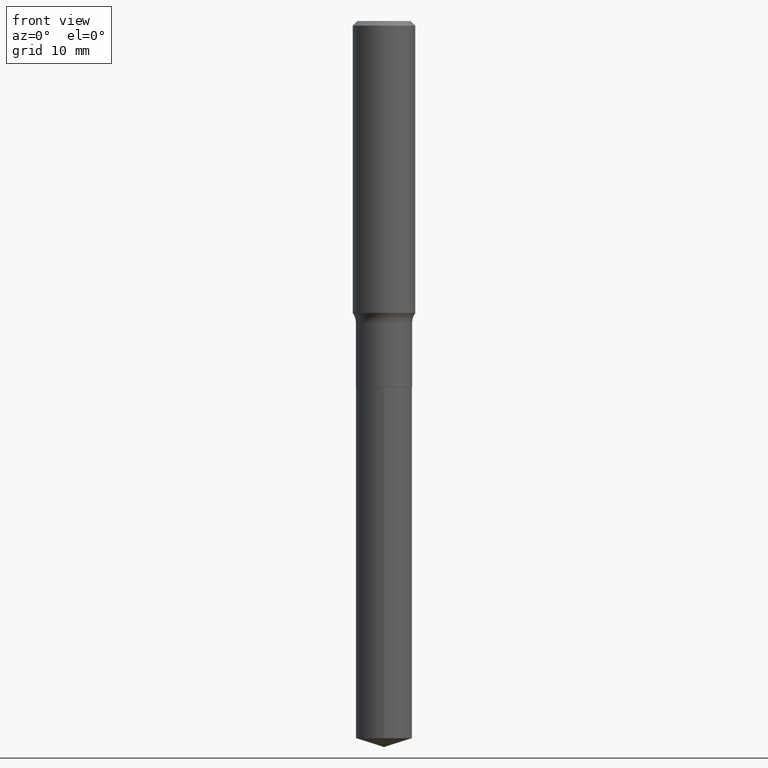
[diagram: clean part render]
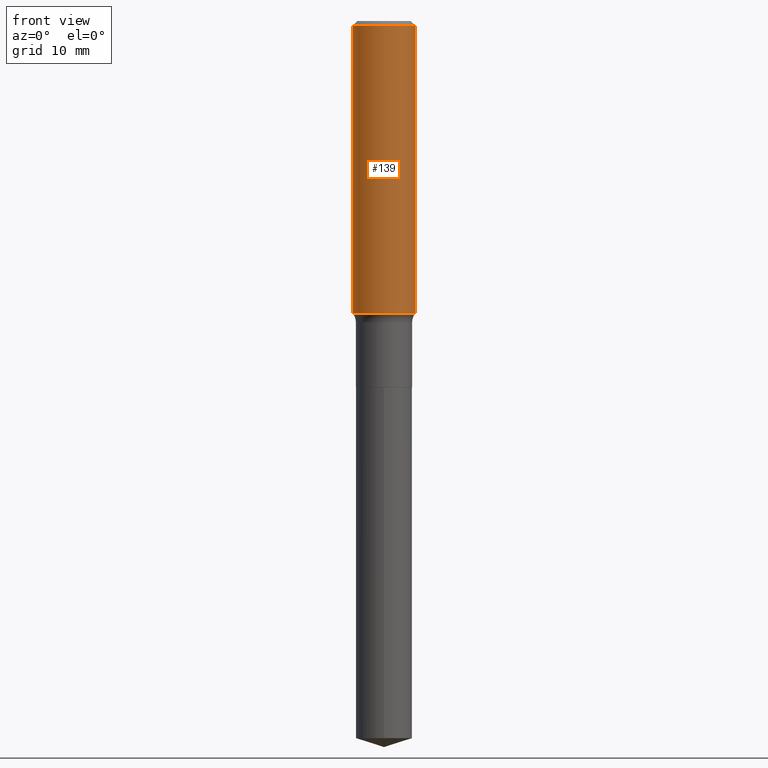
[diagram: same view with one face highlighted and labeled with its STEP entity id]
A machine part, front view. The second image highlights one B-rep face of the part: STEP entity #139.
In plain terms, the highlighted cylindrical surface (edge-blend (fillet) strip) has radius 3.9688 mm, axis along (-0, 0, 1).
Its self-contained STEP definition (entity closure, byte-faithful):
#20 = CARTESIAN_POINT ( 'NONE',  ( 5.731567514496448931E-31, -8.183159387913672688E-17, -0.02343750000000014225 ) ) ;
#30 = VECTOR ( 'NONE', #111, 39.37007874015748143 ) ;
#36 = ORIENTED_EDGE ( 'NONE', *, *, #272, .F. ) ;
#41 = EDGE_CURVE ( 'NONE', #191, #223, #135, .T. ) ;
#53 = CIRCLE ( 'NONE', #181, 0.1562500000000000000 ) ;
#83 = DIRECTION ( 'NONE',  ( -2.445468806185136597E-29, 3.491481338843145583E-15, 1.000000000000000000 ) ) ;
#86 = DIRECTION ( 'NONE',  ( 1.000000000000000000, -6.982962677686268288E-15, 0.000000000000000000 ) ) ;
#91 = DIRECTION ( 'NONE',  ( -2.445468806185136597E-29, 3.491481338843145583E-15, 1.000000000000000000 ) ) ;
#101 = DIRECTION ( 'NONE',  ( -2.445468806185136597E-29, 3.491481338843145583E-15, 1.000000000000000000 ) ) ;
#111 = DIRECTION ( 'NONE',  ( -2.445468806185136877E-29, 3.491481338843145188E-15, 1.000000000000000000 ) ) ;
#113 = LINE ( 'NONE', #331, #30 ) ;
#123 = CARTESIAN_POINT ( 'NONE',  ( 0.000000000000000000, 0.000000000000000000, 0.000000000000000000 ) ) ;
#135 = CIRCLE ( 'NONE', #294, 0.1562500000000001665 ) ;
#139 = ADVANCED_FACE ( 'NONE', ( #466 ), #433, .T. ) ;
#142 = ORIENTED_EDGE ( 'NONE', *, *, #328, .F. ) ;
#154 = VERTEX_POINT ( 'NONE', #410 ) ;
#168 = LINE ( 'NONE', #475, #457 ) ;
#181 = AXIS2_PLACEMENT_3D ( 'NONE', #20, #101, #446 ) ;
#188 = AXIS2_PLACEMENT_3D ( 'NONE', #123, #91, #274 ) ;
#191 = VERTEX_POINT ( 'NONE', #245 ) ;
#223 = VERTEX_POINT ( 'NONE', #247 ) ;
#245 = CARTESIAN_POINT ( 'NONE',  ( -0.1562500000000002220, -3.979311644486573102E-15, -1.457700664898320175 ) ) ;
#247 = CARTESIAN_POINT ( 'NONE',  ( 0.1562500000000002220, -6.180622587500211183E-15, -1.457700664898320175 ) ) ;
#272 = EDGE_CURVE ( 'NONE', #154, #417, #53, .T. ) ;
#274 = DIRECTION ( 'NONE',  ( 1.000000000000000000, -6.982962677686266711E-15, 4.876176775795935232E-29 ) ) ;
#278 = EDGE_CURVE ( 'NONE', #223, #417, #168, .T. ) ;
#294 = AXIS2_PLACEMENT_3D ( 'NONE', #394, #83, #86 ) ;
#311 = CARTESIAN_POINT ( 'NONE',  ( 0.1562500000000000000, -1.172919512267615999E-15, -0.02343750000000014225 ) ) ;
#318 = EDGE_LOOP ( 'NONE', ( #142, #336, #488, #36 ) ) ;
#321 = DIRECTION ( 'NONE',  ( -2.445468806185136877E-29, 3.491481338843145188E-15, 1.000000000000000000 ) ) ;
#328 = EDGE_CURVE ( 'NONE', #191, #154, #113, .T. ) ;
#331 = CARTESIAN_POINT ( 'NONE',  ( -0.1562500000000000833, 1.110223024625157132E-15, -7.685836078523293962E-30 ) ) ;
#336 = ORIENTED_EDGE ( 'NONE', *, *, #41, .T. ) ;
#394 = CARTESIAN_POINT ( 'NONE',  ( 3.564761504764175574E-29, -5.089534669111730432E-15, -1.457700664898320175 ) ) ;
#410 = CARTESIAN_POINT ( 'NONE',  ( -0.1562500000000000000, -1.475460106870276299E-15, -0.02343750000000014225 ) ) ;
#417 = VERTEX_POINT ( 'NONE', #311 ) ;
#433 = CYLINDRICAL_SURFACE ( 'NONE', #188, 0.1562500000000000833 ) ;
#446 = DIRECTION ( 'NONE',  ( 1.000000000000000000, -6.982962677686266711E-15, 0.000000000000000000 ) ) ;
#457 = VECTOR ( 'NONE', #321, 39.37007874015748143 ) ;
#466 = FACE_OUTER_BOUND ( 'NONE', #318, .T. ) ;
#475 = CARTESIAN_POINT ( 'NONE',  ( 0.1562500000000000833, -1.091087918388479765E-15, 7.619026212181153180E-30 ) ) ;
#488 = ORIENTED_EDGE ( 'NONE', *, *, #278, .T. ) ;